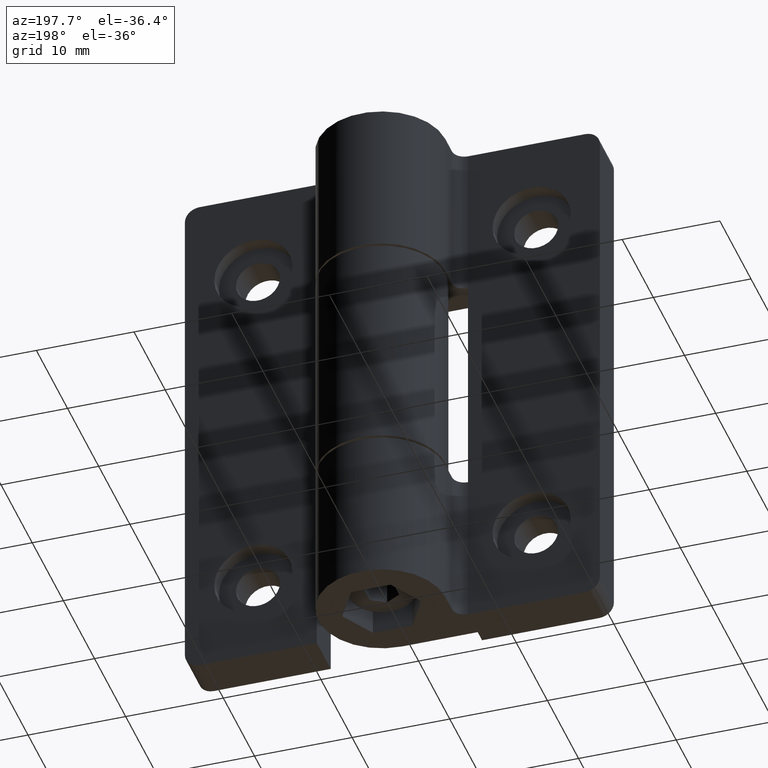
[diagram: clean part render]
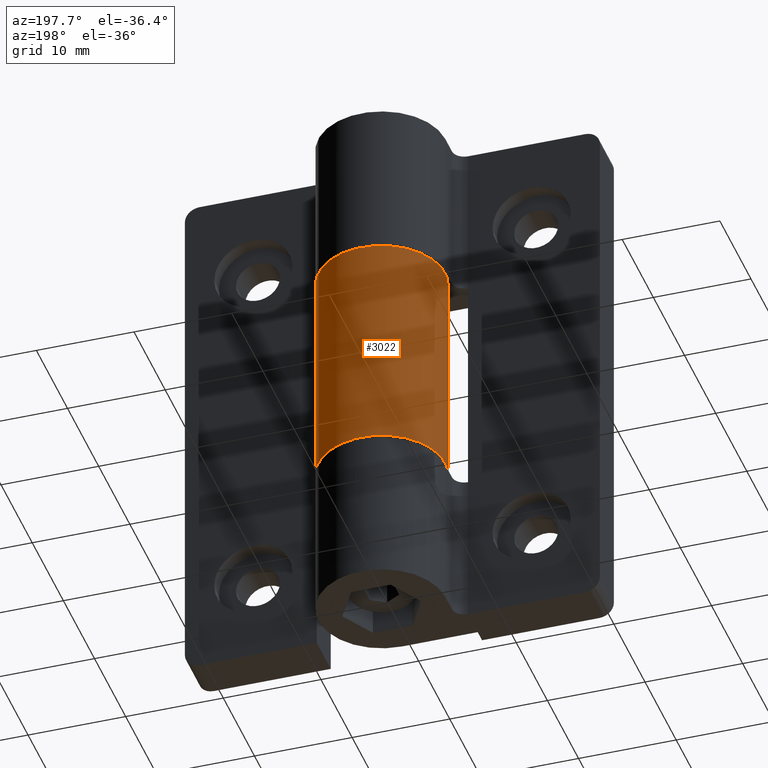
[diagram: same view with one face highlighted and labeled with its STEP entity id]
A machine part, auxiliary view. The second image highlights one B-rep face of the part: STEP entity #3022.
In plain terms, the highlighted cylindrical surface (partial cylindrical patch) has radius 6.5 mm, axis along (0, 0, 1).
Its self-contained STEP definition (entity closure, byte-faithful):
#504=FACE_OUTER_BOUND('',#643,.T.);
#643=EDGE_LOOP('',(#2797,#2798,#2799,#2800));
#791=LINE('',#35925,#943);
#802=LINE('',#35962,#954);
#943=VECTOR('',#3605,23.);
#954=VECTOR('',#3640,23.);
#1030=CIRCLE('',#3180,6.5);
#1032=CIRCLE('',#3183,6.5);
#1413=VERTEX_POINT('',#35922);
#1414=VERTEX_POINT('',#35924);
#1416=VERTEX_POINT('',#35929);
#1419=VERTEX_POINT('',#35938);
#1876=EDGE_CURVE('',#1414,#1413,#791,.T.);
#1880=EDGE_CURVE('',#1416,#1414,#1030,.T.);
#1884=EDGE_CURVE('',#1413,#1419,#1032,.T.);
#1895=EDGE_CURVE('',#1419,#1416,#802,.T.);
#2797=ORIENTED_EDGE('',*,*,#1880,.T.);
#2798=ORIENTED_EDGE('',*,*,#1876,.T.);
#2799=ORIENTED_EDGE('',*,*,#1884,.T.);
#2800=ORIENTED_EDGE('',*,*,#1895,.T.);
#2925=CYLINDRICAL_SURFACE('',#3190,6.5);
#3022=ADVANCED_FACE('',(#504),#2925,.T.);
#3180=AXIS2_PLACEMENT_3D('',#35932,#3611,#3612);
#3183=AXIS2_PLACEMENT_3D('',#35940,#3619,#3620);
#3190=AXIS2_PLACEMENT_3D('',#35961,#3638,#3639);
#3605=DIRECTION('',(0.,-1.,0.));
#3611=DIRECTION('center_axis',(-3.11641550771973E-16,-1.,0.));
#3612=DIRECTION('ref_axis',(1.,-3.11641550771973E-16,0.));
#3619=DIRECTION('center_axis',(0.,1.,0.));
#3620=DIRECTION('ref_axis',(1.,0.,0.));
#3638=DIRECTION('center_axis',(0.,1.,0.));
#3639=DIRECTION('ref_axis',(1.,0.,0.));
#3640=DIRECTION('',(0.,1.,0.));
#35922=CARTESIAN_POINT('',(65.2758813901587,-11.5,7.9));
#35924=CARTESIAN_POINT('',(65.2758813901587,11.5,7.9));
#35925=CARTESIAN_POINT('',(65.2758813901587,0.,7.9));
#35929=CARTESIAN_POINT('',(71.7758813901587,11.5,1.39999999999999));
#35932=CARTESIAN_POINT('Origin',(71.7758813901587,11.5,7.9));
#35938=CARTESIAN_POINT('',(71.7758813901587,-11.5,1.39999999999999));
#35940=CARTESIAN_POINT('Origin',(71.7758813901587,-11.5,7.9));
#35961=CARTESIAN_POINT('Origin',(71.7758813901587,0.,7.9));
#35962=CARTESIAN_POINT('',(71.7758813901587,0.,1.39999999999999));